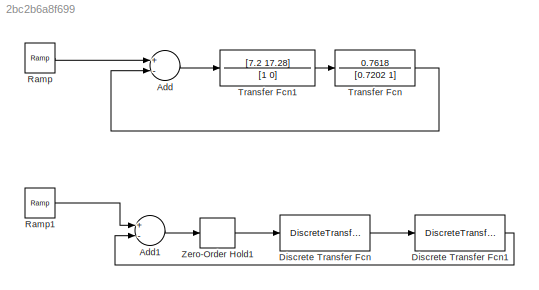
MODEL slx_2bc2b6a8f699
KIND model
CONFIG AbsTol = auto
CONFIG EnableMultiTasking = off
CONFIG FixedStep = auto
CONFIG MaxStep = 1e-3
CONFIG MinStep = auto
CONFIG RelTol = 1e-3
CONFIG SampleTimeConstraint = Unconstrained
CONFIG Solver = VariableStepAuto
CONFIG SolverName = VariableStepAuto
CONFIG StartTime = 0.0
CONFIG StopTime = 50
BLOCK [Sum] Add
  InputSameDT = off
  Inputs = +-
  OutDataTypeStr = Inherit: Inherit via internal rule
  Ports = [2, 1]
  SaturateOnIntegerOverflow = off
BLOCK [Sum] Add1
  InputSameDT = off
  Inputs = +-
  OutDataTypeStr = Inherit: Inherit via internal rule
  Ports = [2, 1]
  SaturateOnIntegerOverflow = off
BLOCK [DiscreteTransferFcn] Discrete Transfer Fcn
  Denominator = [1 -0.3679]
  InputPortMap = u0
  Numerator = 0.4855
  Ports = [1, 1]
  SampleTime = Tt
BLOCK [DiscreteTransferFcn] Discrete Transfer Fcn1
  Denominator = [1 -1]
  InputPortMap = u0
  Numerator = [7.2 1.397]
  Ports = [1, 1]
  SampleTime = Tt
BLOCK [Reference] Ramp  REF=simulink/Sources/Ramp
  Ports = [0, 1]
  SourceBlock = simulink/Sources/Ramp
  SourceProductBaseCode = SL
  SourceProductName = Simulink
  SourceType = Ramp
BLOCK [Reference] Ramp1  REF=simulink/Sources/Ramp
  Ports = [0, 1]
  SourceBlock = simulink/Sources/Ramp
  SourceProductBaseCode = SL
  SourceProductName = Simulink
  SourceType = Ramp
BLOCK [TransferFcn] Transfer Fcn
  Denominator = [0.7202 1]
  Numerator = 0.7618
BLOCK [TransferFcn] Transfer Fcn1
  Denominator = [1 0]
  Numerator = [7.2 17.28]
BLOCK [ZeroOrderHold] Zero-Order Hold1
  SampleTime = Tt
LINE Add1:1 -> Zero-Order Hold1:1
LINE Add:1 -> Transfer Fcn1:1
LINE Discrete Transfer Fcn1:1 -> Add1:2
LINE Discrete Transfer Fcn:1 -> Discrete Transfer Fcn1:1
LINE Ramp1:1 -> Add1:1
LINE Ramp:1 -> Add:1
LINE Transfer Fcn1:1 -> Transfer Fcn:1
LINE Transfer Fcn:1 -> Add:2
LINE Zero-Order Hold1:1 -> Discrete Transfer Fcn:1
